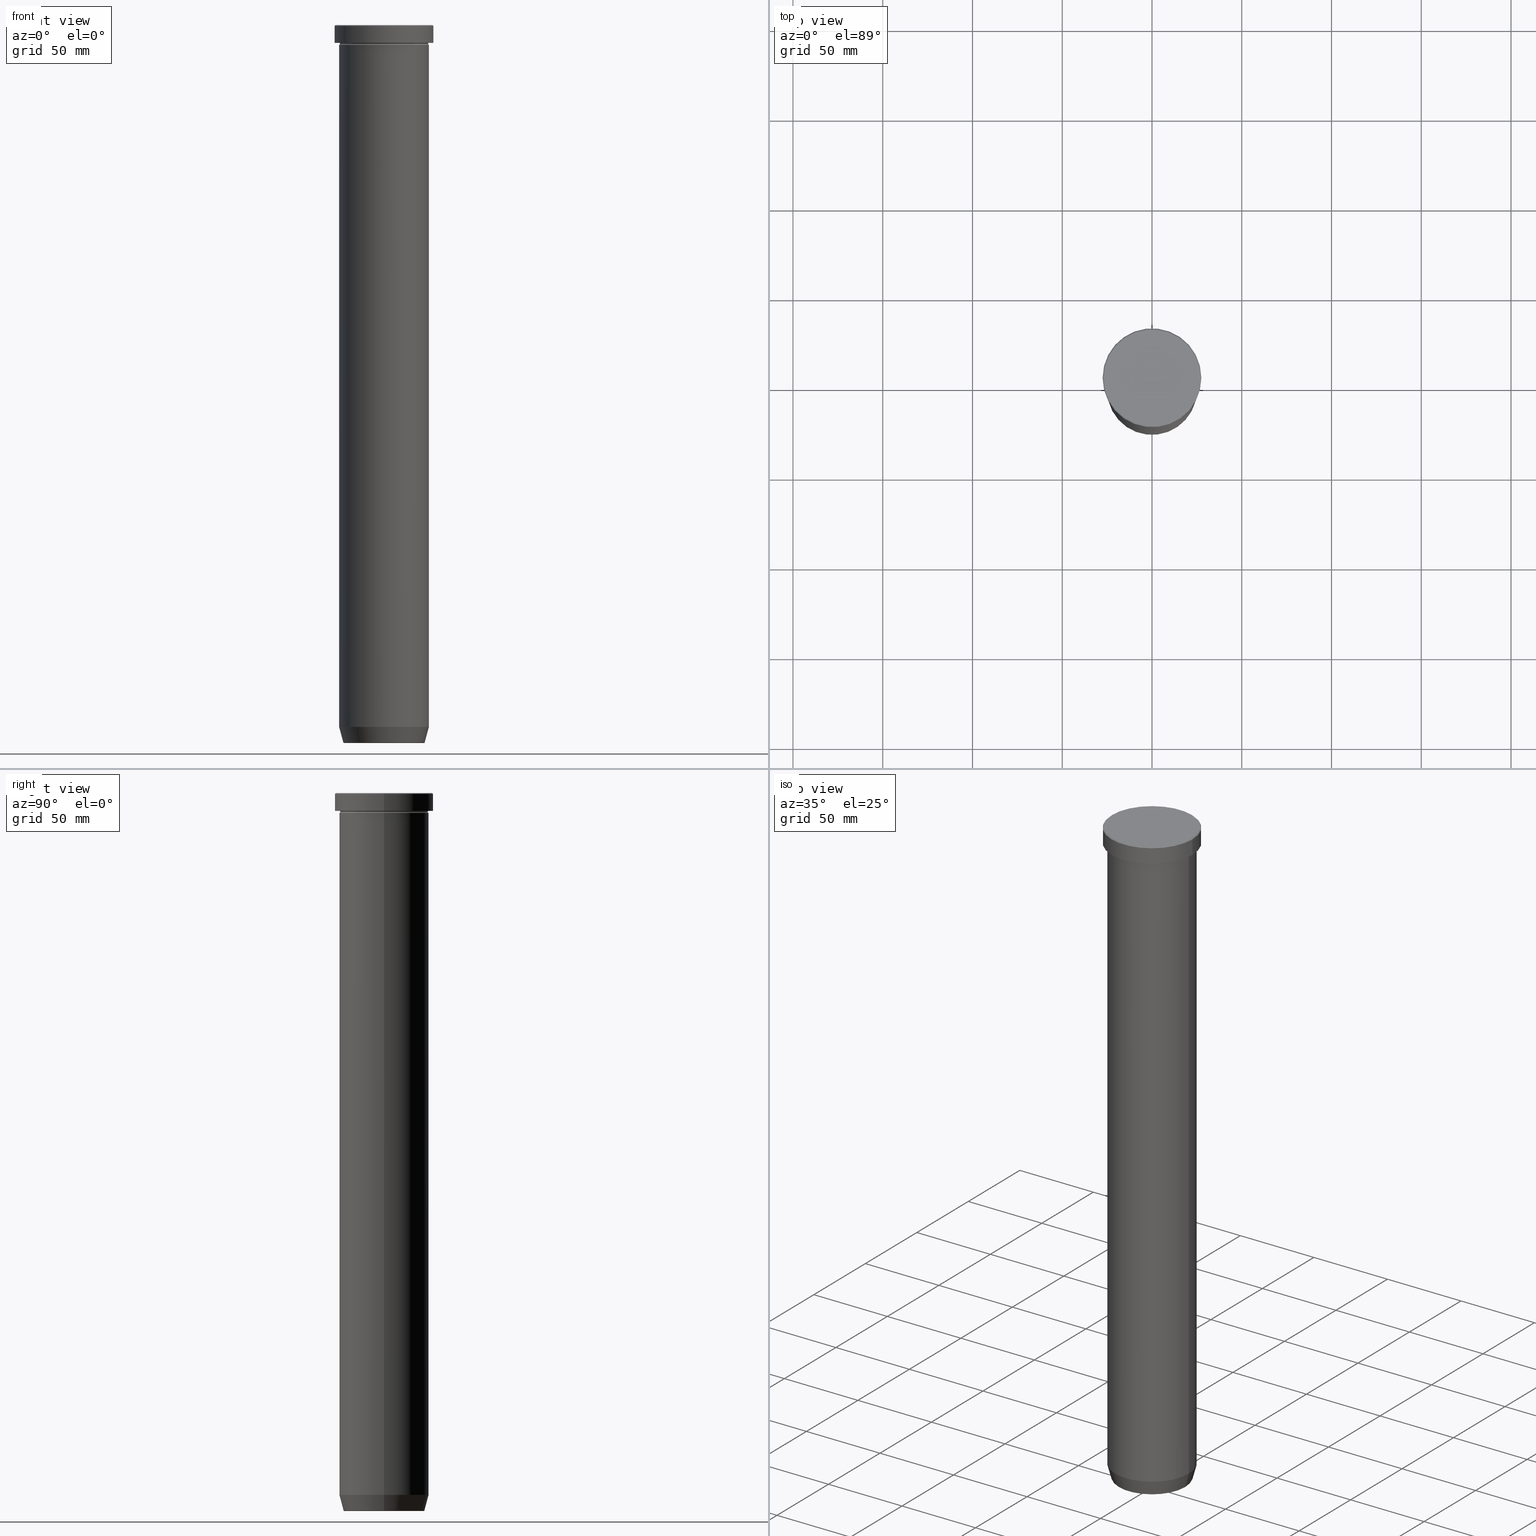
[diagram: canonical four-view strip — front | top / right | iso, engineering-drawing reading convention]
A machine part, canonical four-view strip (front | top / right | iso — engineering-drawing reading convention). The complete STEP part file that produces these views, byte-faithful:
ISO-10303-21;
HEADER;
FILE_DESCRIPTION (( 'STEP AP203' ),
    '1' );
FILE_NAME ('308e.STEP',
    '2024-01-02T17:31:47',
    ( '' ),
    ( '' ),
    'SwSTEP 2.0',
    'SolidWorks 2019',
    '' );
FILE_SCHEMA (( 'CONFIG_CONTROL_DESIGN' ));
ENDSEC;

DATA;
#1 = CARTESIAN_POINT ( 'NONE',  ( 0.000000000000000000, 0.000000000000000000, -400.0000000000000000 ) ) ;
#2 = DIRECTION ( 'NONE',  ( -1.000000000000000000, 0.000000000000000000, -0.000000000000000000 ) ) ;
#3 = AXIS2_PLACEMENT_3D ( 'NONE', #177, #413, #400 ) ;
#4 = LOCAL_TIME ( 18, 31, 47.00000000000000000, #157 ) ;
#5 = PLANE ( 'NONE',  #156 ) ;
#6 = ORIENTED_EDGE ( 'NONE', *, *, #370, .F. ) ;
#7 = DIRECTION ( 'NONE',  ( 0.000000000000000000, -0.000000000000000000, 1.000000000000000000 ) ) ;
#8 = CARTESIAN_POINT ( 'NONE',  ( 0.000000000000000000, 0.000000000000000000, -10.49999999999999822 ) ) ;
#9 = ORIENTED_EDGE ( 'NONE', *, *, #153, .F. ) ;
#10 = CARTESIAN_POINT ( 'NONE',  ( 0.000000000000000000, 0.000000000000000000, -80.00000000000000000 ) ) ;
#11 = DIRECTION ( 'NONE',  ( 0.000000000000000000, 0.000000000000000000, 1.000000000000000000 ) ) ;
#12 = EDGE_CURVE ( 'NONE', #591, #431, #296, .T. ) ;
#13 = DIRECTION ( 'NONE',  ( -0.000000000000000000, -0.000000000000000000, 1.000000000000000000 ) ) ;
#14 = TOROIDAL_SURFACE ( 'NONE', #423, 25.00000000000000000, 0.5000000000000000000 ) ;
#15 = CALENDAR_DATE ( 2024, 2, 1 ) ;
#16 = LOCAL_TIME ( 18, 31, 47.00000000000000000, #189 ) ;
#17 = DIRECTION ( 'NONE',  ( 0.000000000000000000, -0.000000000000000000, 1.000000000000000000 ) ) ;
#18 = PERSON_AND_ORGANIZATION ( #66, #467 ) ;
#19 = EDGE_CURVE ( 'NONE', #361, #101, #63, .T. ) ;
#20 = APPROVAL ( #579, 'NEUR�EN�' ) ;
#21 = DIRECTION ( 'NONE',  ( 1.000000000000000000, 0.000000000000000000, 0.000000000000000000 ) ) ;
#22 = APPROVAL_ROLE ( '' ) ;
#23 = CARTESIAN_POINT ( 'NONE',  ( -25.00000000000000000, 0.000000000000000000, -10.49999999999999822 ) ) ;
#24 = MECHANICAL_CONTEXT ( 'NONE', #449, 'mechanical' ) ;
#25 = FACE_OUTER_BOUND ( 'NONE', #59, .T. ) ;
#26 = AXIS2_PLACEMENT_3D ( 'NONE', #380, #48, #242 ) ;
#27 = DIRECTION ( 'NONE',  ( -1.000000000000000000, 1.224646799147349509E-16, 0.000000000000000000 ) ) ;
#28 = CARTESIAN_POINT ( 'NONE',  ( 0.000000000000000000, 0.000000000000000000, -10.49999999999999822 ) ) ;
#29 = CARTESIAN_POINT ( 'NONE',  ( 22.68775668727494477, 0.000000000000000000, -399.6294095225512706 ) ) ;
#30 = ORIENTED_EDGE ( 'NONE', *, *, #149, .F. ) ;
#31 = DIRECTION ( 'NONE',  ( 0.000000000000000000, 0.000000000000000000, -1.000000000000000000 ) ) ;
#32 = ADVANCED_FACE ( 'NONE', ( #43 ), #434, .T. ) ;
#33 = VERTEX_POINT ( 'NONE', #264 ) ;
#34 = AXIS2_PLACEMENT_3D ( 'NONE', #61, #17, #344 ) ;
#35 = VERTEX_POINT ( 'NONE', #277 ) ;
#36 = VERTEX_POINT ( 'NONE', #367 ) ;
#37 = ORIENTED_EDGE ( 'NONE', *, *, #567, .F. ) ;
#38 = ORIENTED_EDGE ( 'NONE', *, *, #352, .T. ) ;
#39 = CARTESIAN_POINT ( 'NONE',  ( -22.20479377413040822, 2.719302962121588246E-15, -399.5000000000000000 ) ) ;
#40 = EDGE_LOOP ( 'NONE', ( #411, #273 ) ) ;
#41 = AXIS2_PLACEMENT_3D ( 'NONE', #23, #253, #584 ) ;
#42 = CIRCLE ( 'NONE', #510, 22.20479377413040822 ) ;
#43 = FACE_OUTER_BOUND ( 'NONE', #368, .T. ) ;
#44 =( GEOMETRIC_REPRESENTATION_CONTEXT ( 3 ) GLOBAL_UNCERTAINTY_ASSIGNED_CONTEXT ( ( #382 ) ) GLOBAL_UNIT_ASSIGNED_CONTEXT ( ( #147, #430, #292 ) ) REPRESENTATION_CONTEXT ( 'NONE', 'WORKASPACE' ) );
#45 = ADVANCED_FACE ( 'NONE', ( #458 ), #599, .T. ) ;
#46 = ORIENTED_EDGE ( 'NONE', *, *, #57, .T. ) ;
#47 = ADVANCED_FACE ( 'NONE', ( #460 ), #507, .T. ) ;
#48 = DIRECTION ( 'NONE',  ( 0.000000000000000000, 0.000000000000000000, -1.000000000000000000 ) ) ;
#49 = CARTESIAN_POINT ( 'NONE',  ( 0.000000000000000000, 3.469446951953614189E-15, -80.00000000000000000 ) ) ;
#50 = LINE ( 'NONE', #385, #357 ) ;
#51 = TOROIDAL_SURFACE ( 'NONE', #230, 22.20479377413040822, 0.5000000000000000000 ) ;
#52 = VECTOR ( 'NONE', #395, 1000.000000000000000 ) ;
#53 = LOCAL_TIME ( 18, 31, 47.00000000000000000, #103 ) ;
#54 = DIRECTION ( 'NONE',  ( 1.000000000000000000, 0.000000000000000000, 0.000000000000000000 ) ) ;
#55 = ORIENTED_EDGE ( 'NONE', *, *, #554, .F. ) ;
#56 = DIRECTION ( 'NONE',  ( 1.000000000000000000, 0.000000000000000000, 0.000000000000000000 ) ) ;
#57 = EDGE_CURVE ( 'NONE', #325, #35, #181, .T. ) ;
#58 = CARTESIAN_POINT ( 'NONE',  ( 0.000000000000000000, 0.000000000000000000, 0.000000000000000000 ) ) ;
#59 = EDGE_LOOP ( 'NONE', ( #476, #263, #182, #561 ) ) ;
#60 = CARTESIAN_POINT ( 'NONE',  ( -22.58845726811988897, 2.766288189107978730E-15, -400.0000000000000000 ) ) ;
#61 = CARTESIAN_POINT ( 'NONE',  ( 0.000000000000000000, 0.000000000000000000, 0.000000000000000000 ) ) ;
#62 = DIRECTION ( 'NONE',  ( -0.000000000000000000, -0.000000000000000000, 1.000000000000000000 ) ) ;
#63 = CIRCLE ( 'NONE', #551, 22.68775668727494477 ) ;
#64 = AXIS2_PLACEMENT_3D ( 'NONE', #496, #448, #210 ) ;
#65 = PERSON_AND_ORGANIZATION_ROLE ( 'creator' ) ;
#66 = PERSON ( 'NEUR�EN�', 'NEUR�EN�', 'NEUR�EN�', ('NEUR�EN�'), ('NEUR�EN�'), ('NEUR�EN�') ) ;
#67 = DIRECTION ( 'NONE',  ( -0.000000000000000000, -0.000000000000000000, 1.000000000000000000 ) ) ;
#68 = APPROVAL ( #437, 'NEUR�EN�' ) ;
#69 = DIRECTION ( 'NONE',  ( -0.000000000000000000, -0.000000000000000000, 1.000000000000000000 ) ) ;
#70 = CALENDAR_DATE ( 2024, 2, 1 ) ;
#71 = CARTESIAN_POINT ( 'NONE',  ( 0.000000000000000000, 0.000000000000000000, -399.5000000000000000 ) ) ;
#72 = DIRECTION ( 'NONE',  ( -0.000000000000000000, -0.000000000000000000, 1.000000000000000000 ) ) ;
#73 = DIRECTION ( 'NONE',  ( 1.000000000000000000, 0.000000000000000000, 0.000000000000000000 ) ) ;
#74 = EDGE_CURVE ( 'NONE', #166, #550, #384, .T. ) ;
#75 = CARTESIAN_POINT ( 'NONE',  ( -25.00000000000000711, 3.061616997868383831E-15, -80.00000000000000000 ) ) ;
#76 = DIRECTION ( 'NONE',  ( 1.000000000000000000, 0.000000000000000000, 0.000000000000000000 ) ) ;
#77 = ADVANCED_FACE ( 'NONE', ( #209 ), #355, .T. ) ;
#78 = CARTESIAN_POINT ( 'NONE',  ( 0.000000000000000000, 0.000000000000000000, -10.49999999999999822 ) ) ;
#79 = VERTEX_POINT ( 'NONE', #114 ) ;
#80 = VERTEX_POINT ( 'NONE', #535 ) ;
#81 = AXIS2_PLACEMENT_3D ( 'NONE', #1, #329, #504 ) ;
#82 = CIRCLE ( 'NONE', #318, 25.00000000000000355 ) ;
#83 = APPROVAL_PERSON_ORGANIZATION ( #524, #20, #348 ) ;
#84 = DIRECTION ( 'NONE',  ( 1.000000000000000000, 0.000000000000000000, 0.000000000000000000 ) ) ;
#85 = EDGE_LOOP ( 'NONE', ( #519, #219, #589, #558 ) ) ;
#86 = ORIENTED_EDGE ( 'NONE', *, *, #340, .F. ) ;
#87 = DIRECTION ( 'NONE',  ( -1.000000000000000000, 0.000000000000000000, 0.000000000000000000 ) ) ;
#88 = VERTEX_POINT ( 'NONE', #570 ) ;
#89 = ORIENTED_EDGE ( 'NONE', *, *, #197, .F. ) ;
#90 = ADVANCED_FACE ( 'NONE', ( #490 ), #51, .T. ) ;
#91 = CIRCLE ( 'NONE', #195, 25.00000000000000000 ) ;
#92 = ORIENTED_EDGE ( 'NONE', *, *, #192, .F. ) ;
#93 = EDGE_CURVE ( 'NONE', #80, #469, #306, .T. ) ;
#94 = DIRECTION ( 'NONE',  ( -0.000000000000000000, -0.000000000000000000, 1.000000000000000000 ) ) ;
#95 = DIRECTION ( 'NONE',  ( 1.000000000000000000, 0.000000000000000000, 0.000000000000000000 ) ) ;
#96 = CARTESIAN_POINT ( 'NONE',  ( 0.000000000000000000, 0.000000000000000000, 0.000000000000000000 ) ) ;
#97 = DIRECTION ( 'NONE',  ( 1.000000000000000000, 0.000000000000000000, 0.000000000000000000 ) ) ;
#98 = AXIS2_PLACEMENT_3D ( 'NONE', #324, #131, #321 ) ;
#99 = CIRCLE ( 'NONE', #262, 0.5000000000000004441 ) ;
#100 = DIRECTION ( 'NONE',  ( -1.000000000000000000, 0.000000000000000000, 0.000000000000000000 ) ) ;
#101 = VERTEX_POINT ( 'NONE', #29 ) ;
#102 = CARTESIAN_POINT ( 'NONE',  ( 26.99999999999996447, 3.306546357697849395E-15, 0.000000000000000000 ) ) ;
#103 = COORDINATED_UNIVERSAL_TIME_OFFSET ( 1, 0, .AHEAD. ) ;
#104 = CARTESIAN_POINT ( 'NONE',  ( -25.00000000000000000, 3.061616997868383043E-15, -11.00000000000000000 ) ) ;
#105 = FACE_OUTER_BOUND ( 'NONE', #555, .T. ) ;
#106 = PERSON_AND_ORGANIZATION ( #66, #467 ) ;
#107 = EDGE_CURVE ( 'NONE', #360, #226, #586, .T. ) ;
#108 = PRODUCT_RELATED_PRODUCT_CATEGORY ( 'detail', '', ( #457 ) ) ;
#109 = DIRECTION ( 'NONE',  ( 1.000000000000000000, 0.000000000000000000, 0.000000000000000000 ) ) ;
#110 = CARTESIAN_POINT ( 'NONE',  ( 0.000000000000000000, 0.000000000000000000, -391.0000000000000000 ) ) ;
#111 = AXIS2_PLACEMENT_3D ( 'NONE', #513, #289, #2 ) ;
#112 = COORDINATED_UNIVERSAL_TIME_OFFSET ( 1, 0, .AHEAD. ) ;
#113 = LOCAL_TIME ( 18, 31, 47.00000000000000000, #112 ) ;
#114 = CARTESIAN_POINT ( 'NONE',  ( 25.00000000000000000, 3.061616997868383043E-15, -9.999999999999998224 ) ) ;
#115 = CARTESIAN_POINT ( 'NONE',  ( 25.00000000000000000, 0.000000000000000000, -11.00000000000000000 ) ) ;
#116 = CYLINDRICAL_SURFACE ( 'NONE', #172, 25.00000000000000000 ) ;
#117 = CARTESIAN_POINT ( 'NONE',  ( 25.00000000000000000, 0.000000000000000000, 0.000000000000000000 ) ) ;
#118 = EDGE_CURVE ( 'NONE', #469, #412, #247, .T. ) ;
#119 = DIRECTION ( 'NONE',  ( 1.000000000000000000, 0.000000000000000000, 0.000000000000000000 ) ) ;
#120 = AXIS2_PLACEMENT_3D ( 'NONE', #353, #164, #530 ) ;
#121 = CIRCLE ( 'NONE', #327, 0.5000000000000004441 ) ;
#122 = CARTESIAN_POINT ( 'NONE',  ( 0.000000000000000000, 0.000000000000000000, 0.000000000000000000 ) ) ;
#123 = AXIS2_PLACEMENT_3D ( 'NONE', #58, #514, #109 ) ;
#124 = SECURITY_CLASSIFICATION ( '', '', #239 ) ;
#125 = ORIENTED_EDGE ( 'NONE', *, *, #498, .T. ) ;
#126 = ORIENTED_EDGE ( 'NONE', *, *, #127, .F. ) ;
#127 = EDGE_CURVE ( 'NONE', #79, #216, #573, .T. ) ;
#128 = ORIENTED_EDGE ( 'NONE', *, *, #173, .T. ) ;
#129 = AXIS2_PLACEMENT_3D ( 'NONE', #347, #492, #21 ) ;
#130 = AXIS2_PLACEMENT_3D ( 'NONE', #10, #144, #228 ) ;
#131 = DIRECTION ( 'NONE',  ( -0.000000000000000000, -0.000000000000000000, 1.000000000000000000 ) ) ;
#132 = CYLINDRICAL_SURFACE ( 'NONE', #232, 27.50000000000000000 ) ;
#133 = ORIENTED_EDGE ( 'NONE', *, *, #453, .T. ) ;
#134 = ADVANCED_FACE ( 'NONE', ( #298 ), #116, .T. ) ;
#135 = DIRECTION ( 'NONE',  ( -0.000000000000000000, -0.000000000000000000, 1.000000000000000000 ) ) ;
#136 = ORIENTED_EDGE ( 'NONE', *, *, #127, .T. ) ;
#137 = CC_DESIGN_PERSON_AND_ORGANIZATION_ASSIGNMENT ( #18, #441, ( #457 ) ) ;
#138 = EDGE_LOOP ( 'NONE', ( #55, #217, #313, #212 ) ) ;
#139 = CARTESIAN_POINT ( 'NONE',  ( 0.000000000000000000, 0.000000000000000000, -400.0000000000000000 ) ) ;
#140 = DIRECTION ( 'NONE',  ( 0.000000000000000000, 0.000000000000000000, -1.000000000000000000 ) ) ;
#141 = ORIENTED_EDGE ( 'NONE', *, *, #587, .F. ) ;
#142 = PLANE ( 'NONE',  #26 ) ;
#143 = ORIENTED_EDGE ( 'NONE', *, *, #161, .T. ) ;
#144 = DIRECTION ( 'NONE',  ( -0.000000000000000000, -0.000000000000000000, 1.000000000000000000 ) ) ;
#145 = VECTOR ( 'NONE', #287, 1000.000000000000000 ) ;
#146 = DATE_TIME_ROLE ( 'classification_date' ) ;
#147 =( LENGTH_UNIT ( ) NAMED_UNIT ( * ) SI_UNIT ( .MILLI., .METRE. ) );
#148 = CARTESIAN_POINT ( 'NONE',  ( -22.68775668727494477, 2.920032929279452187E-15, -399.6294095225512706 ) ) ;
#149 = EDGE_CURVE ( 'NONE', #420, #35, #440, .T. ) ;
#150 = CALENDAR_DATE ( 2024, 2, 1 ) ;
#151 = DIRECTION ( 'NONE',  ( -1.000000000000000000, 0.000000000000000000, 0.000000000000000000 ) ) ;
#152 = CARTESIAN_POINT ( 'NONE',  ( 0.000000000000000000, 0.000000000000000000, -400.0000000000000000 ) ) ;
#153 = EDGE_CURVE ( 'NONE', #33, #420, #317, .T. ) ;
#154 = AXIS2_PLACEMENT_3D ( 'NONE', #152, #69, #495 ) ;
#155 = DIRECTION ( 'NONE',  ( -0.000000000000000000, -0.000000000000000000, 1.000000000000000000 ) ) ;
#156 = AXIS2_PLACEMENT_3D ( 'NONE', #49, #140, #569 ) ;
#157 = COORDINATED_UNIVERSAL_TIME_OFFSET ( 1, 0, .AHEAD. ) ;
#158 = CARTESIAN_POINT ( 'NONE',  ( -25.00000000000000000, 0.000000000000000000, -9.999999999999998224 ) ) ;
#159 = DIRECTION ( 'NONE',  ( 0.000000000000000000, 0.000000000000000000, -1.000000000000000000 ) ) ;
#160 = DIRECTION ( 'NONE',  ( 1.000000000000000000, 0.000000000000000000, 0.000000000000000000 ) ) ;
#161 = EDGE_CURVE ( 'NONE', #469, #80, #252, .T. ) ;
#162 = CARTESIAN_POINT ( 'NONE',  ( 27.50000000000000000, 0.000000000000000000, 0.000000000000000000 ) ) ;
#163 = FACE_OUTER_BOUND ( 'NONE', #337, .T. ) ;
#164 = DIRECTION ( 'NONE',  ( -0.000000000000000000, -0.000000000000000000, 1.000000000000000000 ) ) ;
#165 = AXIS2_PLACEMENT_3D ( 'NONE', #293, #7, #483 ) ;
#166 = VERTEX_POINT ( 'NONE', #533 ) ;
#167 = ORIENTED_EDGE ( 'NONE', *, *, #300, .T. ) ;
#168 = ORIENTED_EDGE ( 'NONE', *, *, #74, .F. ) ;
#169 = ORIENTED_EDGE ( 'NONE', *, *, #320, .F. ) ;
#170 = CARTESIAN_POINT ( 'NONE',  ( 22.20479377413040822, 0.000000000000000000, -399.5000000000000000 ) ) ;
#171 = EDGE_LOOP ( 'NONE', ( #501, #544, #549, #141 ) ) ;
#172 = AXIS2_PLACEMENT_3D ( 'NONE', #250, #403, #442 ) ;
#173 = EDGE_CURVE ( 'NONE', #166, #216, #592, .T. ) ;
#174 = CIRCLE ( 'NONE', #553, 25.00000000000000000 ) ;
#175 = LOCAL_TIME ( 18, 31, 47.00000000000000000, #199 ) ;
#176 = ORIENTED_EDGE ( 'NONE', *, *, #173, .F. ) ;
#177 = CARTESIAN_POINT ( 'NONE',  ( 0.000000000000000000, 0.000000000000000000, -9.999999999999998224 ) ) ;
#178 = APPROVAL ( #206, 'NEUR�EN�' ) ;
#179 = ORIENTED_EDGE ( 'NONE', *, *, #192, .T. ) ;
#180 = CARTESIAN_POINT ( 'NONE',  ( 0.000000000000000000, 0.000000000000000000, -399.6294095225512706 ) ) ;
#181 = CIRCLE ( 'NONE', #261, 27.50000000000000000 ) ;
#182 = ORIENTED_EDGE ( 'NONE', *, *, #540, .F. ) ;
#183 = AXIS2_PLACEMENT_3D ( 'NONE', #438, #435, #151 ) ;
#184 = CC_DESIGN_SECURITY_CLASSIFICATION ( #124, ( #310 ) ) ;
#185 = CC_DESIGN_PERSON_AND_ORGANIZATION_ASSIGNMENT ( #571, #564, ( #124 ) ) ;
#186 = CARTESIAN_POINT ( 'NONE',  ( -25.00000000000000000, 3.061616997868383043E-15, 0.000000000000000000 ) ) ;
#187 = FACE_OUTER_BOUND ( 'NONE', #506, .T. ) ;
#188 = CARTESIAN_POINT ( 'NONE',  ( 0.000000000000000000, 0.000000000000000000, 0.000000000000000000 ) ) ;
#189 = COORDINATED_UNIVERSAL_TIME_OFFSET ( 1, 0, .AHEAD. ) ;
#190 = DIRECTION ( 'NONE',  ( 1.000000000000000000, 0.000000000000000000, 0.000000000000000000 ) ) ;
#191 = LINE ( 'NONE', #102, #494 ) ;
#192 = EDGE_CURVE ( 'NONE', #420, #33, #336, .T. ) ;
#193 = AXIS2_PLACEMENT_3D ( 'NONE', #211, #578, #73 ) ;
#194 = AXIS2_PLACEMENT_3D ( 'NONE', #39, #493, #221 ) ;
#195 = AXIS2_PLACEMENT_3D ( 'NONE', #311, #354, #160 ) ;
#196 = FACE_OUTER_BOUND ( 'NONE', #138, .T. ) ;
#197 = EDGE_CURVE ( 'NONE', #88, #314, #121, .T. ) ;
#198 = MANIFOLD_SOLID_BREP ( 'Zkosen�1', #414 ) ;
#199 = COORDINATED_UNIVERSAL_TIME_OFFSET ( 1, 0, .AHEAD. ) ;
#200 = DIRECTION ( 'NONE',  ( -0.000000000000000000, -0.000000000000000000, 1.000000000000000000 ) ) ;
#201 = PERSON_AND_ORGANIZATION_ROLE ( 'creator' ) ;
#202 = ORIENTED_EDGE ( 'NONE', *, *, #268, .F. ) ;
#203 = DIRECTION ( 'NONE',  ( -0.000000000000000000, -0.000000000000000000, 1.000000000000000000 ) ) ;
#204 = CARTESIAN_POINT ( 'NONE',  ( 25.00000000000000000, 0.000000000000000000, -10.49999999999999822 ) ) ;
#205 = AXIS2_PLACEMENT_3D ( 'NONE', #234, #518, #100 ) ;
#206 = APPROVAL_STATUS ( 'not_yet_approved' ) ;
#207 = ADVANCED_FACE ( 'NONE', ( #350 ), #575, .T. ) ;
#208 = CARTESIAN_POINT ( 'NONE',  ( -27.50000000000000000, 3.367778697655221307E-15, 0.000000000000000000 ) ) ;
#209 = FACE_OUTER_BOUND ( 'NONE', #85, .T. ) ;
#210 = DIRECTION ( 'NONE',  ( 1.000000000000000000, 0.000000000000000000, 0.000000000000000000 ) ) ;
#211 = CARTESIAN_POINT ( 'NONE',  ( 0.000000000000000000, 0.000000000000000000, -80.00000000000000000 ) ) ;
#212 = ORIENTED_EDGE ( 'NONE', *, *, #512, .F. ) ;
#213 = FACE_OUTER_BOUND ( 'NONE', #462, .T. ) ;
#214 = ADVANCED_FACE ( 'NONE', ( #213 ), #132, .T. ) ;
#215 = VECTOR ( 'NONE', #255, 1000.000000000000000 ) ;
#216 = VERTEX_POINT ( 'NONE', #158 ) ;
#217 = ORIENTED_EDGE ( 'NONE', *, *, #417, .T. ) ;
#218 = EDGE_LOOP ( 'NONE', ( #168, #323, #283, #409 ) ) ;
#219 = ORIENTED_EDGE ( 'NONE', *, *, #19, .T. ) ;
#220 = EDGE_LOOP ( 'NONE', ( #541, #136 ) ) ;
#221 = DIRECTION ( 'NONE',  ( -1.000000000000000000, 1.224646799147349509E-16, 0.000000000000000000 ) ) ;
#222 = EDGE_LOOP ( 'NONE', ( #374, #269, #585, #6 ) ) ;
#223 = EDGE_CURVE ( 'NONE', #226, #550, #322, .T. ) ;
#224 = AXIS2_PLACEMENT_3D ( 'NONE', #28, #536, #545 ) ;
#225 = ORIENTED_EDGE ( 'NONE', *, *, #260, .T. ) ;
#226 = VERTEX_POINT ( 'NONE', #75 ) ;
#227 = ORIENTED_EDGE ( 'NONE', *, *, #466, .T. ) ;
#228 = DIRECTION ( 'NONE',  ( 1.000000000000000000, 0.000000000000000000, 0.000000000000000000 ) ) ;
#229 = CARTESIAN_POINT ( 'NONE',  ( 22.20479377413040822, 0.000000000000000000, -400.0000000000000000 ) ) ;
#230 = AXIS2_PLACEMENT_3D ( 'NONE', #71, #256, #526 ) ;
#231 = DIRECTION ( 'NONE',  ( -1.000000000000000000, 0.000000000000000000, 0.000000000000000000 ) ) ;
#232 = AXIS2_PLACEMENT_3D ( 'NONE', #251, #203, #257 ) ;
#233 = APPLICATION_CONTEXT ( 'configuration controlled 3d designs of mechanical parts and assemblies' ) ;
#234 = CARTESIAN_POINT ( 'NONE',  ( 0.000000000000000000, 0.000000000000000000, -399.6294095225512706 ) ) ;
#235 = ORIENTED_EDGE ( 'NONE', *, *, #118, .F. ) ;
#236 = DIRECTION ( 'NONE',  ( 0.000000000000000000, 0.000000000000000000, -1.000000000000000000 ) ) ;
#237 = ORIENTED_EDGE ( 'NONE', *, *, #567, .T. ) ;
#238 = PLANE ( 'NONE',  #165 ) ;
#239 = SECURITY_CLASSIFICATION_LEVEL ( 'unclassified' ) ;
#240 = CC_DESIGN_DATE_AND_TIME_ASSIGNMENT ( #568, #388, ( #523 ) ) ;
#241 = FACE_OUTER_BOUND ( 'NONE', #218, .T. ) ;
#242 = DIRECTION ( 'NONE',  ( -1.000000000000000000, 0.000000000000000000, -0.000000000000000000 ) ) ;
#243 = AXIS2_PLACEMENT_3D ( 'NONE', #110, #572, #304 ) ;
#244 = VECTOR ( 'NONE', #67, 1000.000000000000000 ) ;
#245 = PERSON_AND_ORGANIZATION ( #66, #467 ) ;
#246 = DIRECTION ( 'NONE',  ( 1.000000000000000000, 0.000000000000000000, 0.000000000000000000 ) ) ;
#247 = LINE ( 'NONE', #393, #282 ) ;
#248 = APPROVAL_DATE_TIME ( #299, #20 ) ;
#249 = ADVANCED_FACE ( 'NONE', ( #25 ), #528, .T. ) ;
#250 = CARTESIAN_POINT ( 'NONE',  ( 0.000000000000000000, 0.000000000000000000, 0.000000000000000000 ) ) ;
#251 = CARTESIAN_POINT ( 'NONE',  ( 0.000000000000000000, 0.000000000000000000, 0.000000000000000000 ) ) ;
#252 = CIRCLE ( 'NONE', #120, 25.00000000000000000 ) ;
#253 = DIRECTION ( 'NONE',  ( -0.000000000000000000, -1.000000000000000000, -0.000000000000000000 ) ) ;
#254 = AXIS2_PLACEMENT_3D ( 'NONE', #122, #72, #532 ) ;
#255 = DIRECTION ( 'NONE',  ( -0.000000000000000000, -0.000000000000000000, 1.000000000000000000 ) ) ;
#256 = DIRECTION ( 'NONE',  ( -0.000000000000000000, -0.000000000000000000, 1.000000000000000000 ) ) ;
#257 = DIRECTION ( 'NONE',  ( 1.000000000000000000, 0.000000000000000000, 0.000000000000000000 ) ) ;
#258 = EDGE_CURVE ( 'NONE', #33, #325, #580, .T. ) ;
#259 = ORIENTED_EDGE ( 'NONE', *, *, #352, .F. ) ;
#260 = EDGE_CURVE ( 'NONE', #591, #101, #99, .T. ) ;
#261 = AXIS2_PLACEMENT_3D ( 'NONE', #301, #446, #76 ) ;
#262 = AXIS2_PLACEMENT_3D ( 'NONE', #170, #451, #595 ) ;
#263 = ORIENTED_EDGE ( 'NONE', *, *, #312, .T. ) ;
#264 = CARTESIAN_POINT ( 'NONE',  ( -27.50000000000000000, 3.367778697655221307E-15, -9.999999999999998224 ) ) ;
#265 = ORIENTED_EDGE ( 'NONE', *, *, #300, .F. ) ;
#266 = ORIENTED_EDGE ( 'NONE', *, *, #118, .T. ) ;
#267 = CARTESIAN_POINT ( 'NONE',  ( -25.00000000000000000, 3.061616997868383043E-15, 0.000000000000000000 ) ) ;
#268 = EDGE_CURVE ( 'NONE', #360, #314, #349, .T. ) ;
#269 = ORIENTED_EDGE ( 'NONE', *, *, #340, .T. ) ;
#270 = DIRECTION ( 'NONE',  ( 1.000000000000000000, 0.000000000000000000, 0.000000000000000000 ) ) ;
#271 = CIRCLE ( 'NONE', #130, 25.00000000000000000 ) ;
#272 = APPROVAL_PERSON_ORGANIZATION ( #245, #68, #341 ) ;
#273 = ORIENTED_EDGE ( 'NONE', *, *, #554, .T. ) ;
#274 = ADVANCED_FACE ( 'NONE', ( #163 ), #401, .T. ) ;
#275 = ORIENTED_EDGE ( 'NONE', *, *, #498, .F. ) ;
#276 = CARTESIAN_POINT ( 'NONE',  ( 0.000000000000000000, 0.000000000000000000, -80.00000000000000000 ) ) ;
#277 = CARTESIAN_POINT ( 'NONE',  ( 27.50000000000000000, 0.000000000000000000, -0.5000000000000420775 ) ) ;
#278 = ADVANCED_BREP_SHAPE_REPRESENTATION ( '308e', ( #198, #598, #387 ), #44 ) ;
#279 = CARTESIAN_POINT ( 'NONE',  ( 0.000000000000000000, 0.000000000000000000, -10.49999999999999822 ) ) ;
#280 = SHAPE_DEFINITION_REPRESENTATION ( #315, #278 ) ;
#281 = DIRECTION ( 'NONE',  ( 0.000000000000000000, 0.000000000000000000, -1.000000000000000000 ) ) ;
#282 = VECTOR ( 'NONE', #345, 1000.000000000000000 ) ;
#283 = ORIENTED_EDGE ( 'NONE', *, *, #197, .T. ) ;
#284 = CARTESIAN_POINT ( 'NONE',  ( -22.20479377413040822, 2.748875911406054788E-15, -400.0000000000000000 ) ) ;
#285 = AXIS2_PLACEMENT_3D ( 'NONE', #491, #505, #444 ) ;
#286 = EDGE_CURVE ( 'NONE', #314, #550, #465, .T. ) ;
#287 = DIRECTION ( 'NONE',  ( -0.7071067811865426878, 0.000000000000000000, -0.7071067811865524577 ) ) ;
#288 = EDGE_LOOP ( 'NONE', ( #459, #546, #316, #202 ) ) ;
#289 = DIRECTION ( 'NONE',  ( 0.000000000000000000, 0.000000000000000000, -1.000000000000000000 ) ) ;
#290 = EDGE_CURVE ( 'NONE', #588, #412, #91, .T. ) ;
#291 = DATE_AND_TIME ( #70, #53 ) ;
#292 =( NAMED_UNIT ( * ) SI_UNIT ( $, .STERADIAN. ) SOLID_ANGLE_UNIT ( ) );
#293 = CARTESIAN_POINT ( 'NONE',  ( 0.000000000000000000, 4.286263797015736496E-14, -400.0000000000000000 ) ) ;
#294 = CARTESIAN_POINT ( 'NONE',  ( 0.000000000000000000, 0.000000000000000000, 0.000000000000000000 ) ) ;
#295 = DIRECTION ( 'NONE',  ( -1.224646799147353207E-16, 1.000000000000000000, 0.000000000000000000 ) ) ;
#296 = CIRCLE ( 'NONE', #81, 22.20479377413040822 ) ;
#297 = TOROIDAL_SURFACE ( 'NONE', #455, 25.00000000000000000, 0.5000000000000000000 ) ;
#298 = FACE_OUTER_BOUND ( 'NONE', #424, .T. ) ;
#299 = DATE_AND_TIME ( #150, #16 ) ;
#300 = EDGE_CURVE ( 'NONE', #166, #88, #464, .T. ) ;
#301 = CARTESIAN_POINT ( 'NONE',  ( 0.000000000000000000, 0.000000000000000000, -0.5000000000000420775 ) ) ;
#302 = DIRECTION ( 'NONE',  ( 1.000000000000000000, 0.000000000000000000, 0.000000000000000000 ) ) ;
#303 = CARTESIAN_POINT ( 'NONE',  ( 0.000000000000000000, 0.000000000000000000, -11.00000000000000000 ) ) ;
#304 = DIRECTION ( 'NONE',  ( 1.000000000000000000, 0.000000000000000000, 0.000000000000000000 ) ) ;
#305 = DIRECTION ( 'NONE',  ( -0.000000000000000000, -0.000000000000000000, 1.000000000000000000 ) ) ;
#306 = CIRCLE ( 'NONE', #243, 25.00000000000000000 ) ;
#307 = DIRECTION ( 'NONE',  ( -1.000000000000000000, 0.000000000000000000, 0.000000000000000000 ) ) ;
#308 = ADVANCED_FACE ( 'NONE', ( #582 ), #436, .F. ) ;
#309 = CIRCLE ( 'NONE', #123, 26.99999999999996447 ) ;
#310 = PRODUCT_DEFINITION_FORMATION_WITH_SPECIFIED_SOURCE ( 'LIBOVOLN�', '', #457, .NOT_KNOWN. ) ;
#311 = CARTESIAN_POINT ( 'NONE',  ( 0.000000000000000000, 0.000000000000000000, -80.00000000000000000 ) ) ;
#312 = EDGE_CURVE ( 'NONE', #431, #361, #365, .T. ) ;
#313 = ORIENTED_EDGE ( 'NONE', *, *, #57, .F. ) ;
#314 = VERTEX_POINT ( 'NONE', #115 ) ;
#315 = PRODUCT_DEFINITION_SHAPE ( 'NONE', 'NONE',  #523 ) ;
#316 = ORIENTED_EDGE ( 'NONE', *, *, #286, .F. ) ;
#317 = CIRCLE ( 'NONE', #129, 27.50000000000000000 ) ;
#318 = AXIS2_PLACEMENT_3D ( 'NONE', #276, #13, #95 ) ;
#319 = ORIENTED_EDGE ( 'NONE', *, *, #107, .F. ) ;
#320 = EDGE_CURVE ( 'NONE', #216, #79, #445, .T. ) ;
#321 = DIRECTION ( 'NONE',  ( 1.000000000000000000, 0.000000000000000000, 0.000000000000000000 ) ) ;
#322 = LINE ( 'NONE', #267, #486 ) ;
#323 = ORIENTED_EDGE ( 'NONE', *, *, #326, .F. ) ;
#324 = CARTESIAN_POINT ( 'NONE',  ( 0.000000000000000000, 0.000000000000000000, 0.000000000000000000 ) ) ;
#325 = VERTEX_POINT ( 'NONE', #351 ) ;
#326 = EDGE_CURVE ( 'NONE', #88, #166, #346, .T. ) ;
#327 = AXIS2_PLACEMENT_3D ( 'NONE', #204, #398, #159 ) ;
#328 = CONICAL_SURFACE ( 'NONE', #406, 26.99999999999996447, 0.7853981633974415066 ) ;
#329 = DIRECTION ( 'NONE',  ( 0.000000000000000000, 0.000000000000000000, -1.000000000000000000 ) ) ;
#330 = DIRECTION ( 'NONE',  ( 0.000000000000000000, 0.000000000000000000, -1.000000000000000000 ) ) ;
#331 = CARTESIAN_POINT ( 'NONE',  ( -26.99999999999996447, 0.000000000000000000, 0.000000000000000000 ) ) ;
#332 = EDGE_LOOP ( 'NONE', ( #92, #9 ) ) ;
#333 = DIRECTION ( 'NONE',  ( 0.2588190451025211836, 0.000000000000000000, 0.9659258262890680902 ) ) ;
#334 = DESIGN_CONTEXT ( 'detailed design', #233, 'design' ) ;
#335 = FACE_OUTER_BOUND ( 'NONE', #40, .T. ) ;
#336 = CIRCLE ( 'NONE', #563, 27.50000000000000000 ) ;
#337 = EDGE_LOOP ( 'NONE', ( #179, #502, #46, #30 ) ) ;
#338 = CARTESIAN_POINT ( 'NONE',  ( 0.000000000000000000, 0.000000000000000000, -11.00000000000000000 ) ) ;
#339 = CIRCLE ( 'NONE', #415, 0.5000000000000004441 ) ;
#340 = EDGE_CURVE ( 'NONE', #226, #360, #82, .T. ) ;
#341 = APPROVAL_ROLE ( '' ) ;
#342 = FACE_OUTER_BOUND ( 'NONE', #539, .T. ) ;
#343 = PERSON_AND_ORGANIZATION ( #66, #467 ) ;
#344 = DIRECTION ( 'NONE',  ( 1.000000000000000000, 0.000000000000000000, 0.000000000000000000 ) ) ;
#345 = DIRECTION ( 'NONE',  ( -0.000000000000000000, -0.000000000000000000, 1.000000000000000000 ) ) ;
#346 = CIRCLE ( 'NONE', #537, 24.50000000000000000 ) ;
#347 = CARTESIAN_POINT ( 'NONE',  ( 0.000000000000000000, 0.000000000000000000, -9.999999999999998224 ) ) ;
#348 = APPROVAL_ROLE ( '' ) ;
#349 = LINE ( 'NONE', #117, #52 ) ;
#350 = FACE_OUTER_BOUND ( 'NONE', #468, .T. ) ;
#351 = CARTESIAN_POINT ( 'NONE',  ( -27.50000000000000000, 3.367778697655221307E-15, -0.5000000000000420775 ) ) ;
#352 = EDGE_CURVE ( 'NONE', #412, #588, #271, .T. ) ;
#353 = CARTESIAN_POINT ( 'NONE',  ( 0.000000000000000000, 0.000000000000000000, -391.0000000000000000 ) ) ;
#354 = DIRECTION ( 'NONE',  ( -0.000000000000000000, -0.000000000000000000, 1.000000000000000000 ) ) ;
#355 = CONICAL_SURFACE ( 'NONE', #154, 22.58845726811988897, 0.2617993877991499074 ) ;
#356 = CC_DESIGN_PERSON_AND_ORGANIZATION_ASSIGNMENT ( #381, #201, ( #523 ) ) ;
#357 = VECTOR ( 'NONE', #333, 1000.000000000000114 ) ;
#358 = CARTESIAN_POINT ( 'NONE',  ( -25.00000000000000000, 3.061616997868383043E-15, -10.49999999999999822 ) ) ;
#359 = ORIENTED_EDGE ( 'NONE', *, *, #258, .F. ) ;
#360 = VERTEX_POINT ( 'NONE', #377 ) ;
#361 = VERTEX_POINT ( 'NONE', #148 ) ;
#362 = CARTESIAN_POINT ( 'NONE',  ( 0.000000000000000000, 0.000000000000000000, -400.0000000000000000 ) ) ;
#363 = DIRECTION ( 'NONE',  ( 1.000000000000000000, 0.000000000000000000, 0.000000000000000000 ) ) ;
#364 = AXIS2_PLACEMENT_3D ( 'NONE', #581, #450, #307 ) ;
#365 = CIRCLE ( 'NONE', #194, 0.5000000000000004441 ) ;
#366 = ORIENTED_EDGE ( 'NONE', *, *, #12, .T. ) ;
#367 = CARTESIAN_POINT ( 'NONE',  ( 26.99999999999996447, 3.337162527676535548E-15, 0.000000000000000000 ) ) ;
#368 = EDGE_LOOP ( 'NONE', ( #404, #133, #407, #428 ) ) ;
#369 = ORIENTED_EDGE ( 'NONE', *, *, #74, .T. ) ;
#370 = EDGE_CURVE ( 'NONE', #550, #314, #174, .T. ) ;
#371 = AXIS2_PLACEMENT_3D ( 'NONE', #362, #94, #84 ) ;
#372 = CIRCLE ( 'NONE', #517, 26.99999999999996447 ) ;
#373 = AXIS2_PLACEMENT_3D ( 'NONE', #475, #281, #54 ) ;
#374 = ORIENTED_EDGE ( 'NONE', *, *, #223, .F. ) ;
#375 = CARTESIAN_POINT ( 'NONE',  ( 0.000000000000000000, 0.000000000000000000, -10.49999999999999822 ) ) ;
#376 = FACE_OUTER_BOUND ( 'NONE', #171, .T. ) ;
#377 = CARTESIAN_POINT ( 'NONE',  ( 25.00000000000000355, 0.000000000000000000, -80.00000000000000000 ) ) ;
#378 = DIRECTION ( 'NONE',  ( -1.000000000000000000, 0.000000000000000000, 0.000000000000000000 ) ) ;
#379 = ORIENTED_EDGE ( 'NONE', *, *, #312, .F. ) ;
#380 = CARTESIAN_POINT ( 'NONE',  ( 0.000000000000000000, 27.50000000000000000, -9.999999999999998224 ) ) ;
#381 = PERSON_AND_ORGANIZATION ( #66, #467 ) ;
#382 = UNCERTAINTY_MEASURE_WITH_UNIT (LENGTH_MEASURE( 1.000000000000000082E-05 ), #147, 'distance_accuracy_value', 'NONE');
#383 = LINE ( 'NONE', #471, #145 ) ;
#384 = CIRCLE ( 'NONE', #422, 0.5000000000000004441 ) ;
#385 = CARTESIAN_POINT ( 'NONE',  ( 22.58845726811988897, 0.000000000000000000, -400.0000000000000000 ) ) ;
#386 = AXIS2_PLACEMENT_3D ( 'NONE', #303, #305, #363 ) ;
#387 = AXIS2_PLACEMENT_3D ( 'NONE', #294, #11, #302 ) ;
#388 = DATE_TIME_ROLE ( 'creation_date' ) ;
#389 = FACE_OUTER_BOUND ( 'NONE', #594, .T. ) ;
#390 = EDGE_CURVE ( 'NONE', #509, #36, #372, .T. ) ;
#391 = CC_DESIGN_PERSON_AND_ORGANIZATION_ASSIGNMENT ( #106, #65, ( #310 ) ) ;
#392 = PERSON_AND_ORGANIZATION ( #66, #467 ) ;
#393 = CARTESIAN_POINT ( 'NONE',  ( 25.00000000000000000, 0.000000000000000000, 0.000000000000000000 ) ) ;
#394 = CALENDAR_DATE ( 2024, 2, 1 ) ;
#395 = DIRECTION ( 'NONE',  ( -0.000000000000000000, -0.000000000000000000, 1.000000000000000000 ) ) ;
#396 = VECTOR ( 'NONE', #155, 1000.000000000000000 ) ;
#397 = AXIS2_PLACEMENT_3D ( 'NONE', #375, #480, #231 ) ;
#398 = DIRECTION ( 'NONE',  ( 0.000000000000000000, -1.000000000000000000, 0.000000000000000000 ) ) ;
#399 = DATE_AND_TIME ( #15, #175 ) ;
#400 = DIRECTION ( 'NONE',  ( -1.000000000000000000, 0.000000000000000000, 0.000000000000000000 ) ) ;
#401 = CYLINDRICAL_SURFACE ( 'NONE', #64, 27.50000000000000000 ) ;
#402 = ADVANCED_FACE ( 'NONE', ( #187 ), #14, .F. ) ;
#403 = DIRECTION ( 'NONE',  ( -0.000000000000000000, -0.000000000000000000, 1.000000000000000000 ) ) ;
#404 = ORIENTED_EDGE ( 'NONE', *, *, #540, .T. ) ;
#405 = DIRECTION ( 'NONE',  ( -0.000000000000000000, -0.000000000000000000, 1.000000000000000000 ) ) ;
#406 = AXIS2_PLACEMENT_3D ( 'NONE', #96, #236, #378 ) ;
#407 = ORIENTED_EDGE ( 'NONE', *, *, #161, .F. ) ;
#408 = CC_DESIGN_PERSON_AND_ORGANIZATION_ASSIGNMENT ( #392, #489, ( #310 ) ) ;
#409 = ORIENTED_EDGE ( 'NONE', *, *, #286, .T. ) ;
#410 = ORIENTED_EDGE ( 'NONE', *, *, #290, .T. ) ;
#411 = ORIENTED_EDGE ( 'NONE', *, *, #390, .T. ) ;
#412 = VERTEX_POINT ( 'NONE', #421 ) ;
#413 = DIRECTION ( 'NONE',  ( -0.000000000000000000, -0.000000000000000000, 1.000000000000000000 ) ) ;
#414 = CLOSED_SHELL ( 'NONE', ( #503, #447, #402, #47, #274, #439, #547, #214, #426, #45, #484, #308, #583 ) ) ;
#415 = AXIS2_PLACEMENT_3D ( 'NONE', #482, #295, #525 ) ;
#416 = ORIENTED_EDGE ( 'NONE', *, *, #370, .T. ) ;
#417 = EDGE_CURVE ( 'NONE', #36, #35, #191, .T. ) ;
#418 = DIRECTION ( 'NONE',  ( -0.000000000000000000, -0.000000000000000000, 1.000000000000000000 ) ) ;
#419 = EDGE_CURVE ( 'NONE', #101, #469, #50, .T. ) ;
#420 = VERTEX_POINT ( 'NONE', #559 ) ;
#421 = CARTESIAN_POINT ( 'NONE',  ( 25.00000000000000000, 0.000000000000000000, -80.00000000000000000 ) ) ;
#422 = AXIS2_PLACEMENT_3D ( 'NONE', #358, #488, #27 ) ;
#423 = AXIS2_PLACEMENT_3D ( 'NONE', #279, #429, #470 ) ;
#424 = EDGE_LOOP ( 'NONE', ( #143, #237, #259, #235 ) ) ;
#425 = DIRECTION ( 'NONE',  ( -0.2588190451025211836, 3.169619151431770488E-17, 0.9659258262890680902 ) ) ;
#426 = ADVANCED_FACE ( 'NONE', ( #566, #477 ), #142, .T. ) ;
#427 = CARTESIAN_POINT ( 'NONE',  ( -25.00000000000000000, 3.061616997868383043E-15, -80.00000000000000000 ) ) ;
#428 = ORIENTED_EDGE ( 'NONE', *, *, #419, .F. ) ;
#429 = DIRECTION ( 'NONE',  ( -0.000000000000000000, -0.000000000000000000, 1.000000000000000000 ) ) ;
#430 =( NAMED_UNIT ( * ) PLANE_ANGLE_UNIT ( ) SI_UNIT ( $, .RADIAN. ) );
#431 = VERTEX_POINT ( 'NONE', #284 ) ;
#432 = DIRECTION ( 'NONE',  ( -0.000000000000000000, -0.000000000000000000, 1.000000000000000000 ) ) ;
#433 = DATE_AND_TIME ( #531, #4 ) ;
#434 = CONICAL_SURFACE ( 'NONE', #371, 22.58845726811988897, 0.2617993877991499074 ) ;
#435 = DIRECTION ( 'NONE',  ( 0.000000000000000000, 0.000000000000000000, -1.000000000000000000 ) ) ;
#436 = TOROIDAL_SURFACE ( 'NONE', #543, 25.00000000000000000, 0.5000000000000000000 ) ;
#437 = APPROVAL_STATUS ( 'not_yet_approved' ) ;
#438 = CARTESIAN_POINT ( 'NONE',  ( 0.000000000000000000, 0.000000000000000000, 0.000000000000000000 ) ) ;
#439 = ADVANCED_FACE ( 'NONE', ( #342 ), #472, .T. ) ;
#440 = LINE ( 'NONE', #162, #396 ) ;
#441 = PERSON_AND_ORGANIZATION_ROLE ( 'design_owner' ) ;
#442 = DIRECTION ( 'NONE',  ( 1.000000000000000000, 0.000000000000000000, 0.000000000000000000 ) ) ;
#443 = APPLICATION_PROTOCOL_DEFINITION ( 'international standard', 'config_control_design', 1994, #449 ) ;
#444 = DIRECTION ( 'NONE',  ( 1.000000000000000000, 0.000000000000000000, 0.000000000000000000 ) ) ;
#445 = CIRCLE ( 'NONE', #3, 25.00000000000000000 ) ;
#446 = DIRECTION ( 'NONE',  ( 0.000000000000000000, 0.000000000000000000, -1.000000000000000000 ) ) ;
#447 = ADVANCED_FACE ( 'NONE', ( #562 ), #593, .F. ) ;
#448 = DIRECTION ( 'NONE',  ( -0.000000000000000000, -0.000000000000000000, 1.000000000000000000 ) ) ;
#449 = APPLICATION_CONTEXT ( 'configuration controlled 3d designs of mechanical parts and assemblies' ) ;
#450 = DIRECTION ( 'NONE',  ( -0.000000000000000000, -0.000000000000000000, 1.000000000000000000 ) ) ;
#451 = DIRECTION ( 'NONE',  ( 0.000000000000000000, -1.000000000000000000, 0.000000000000000000 ) ) ;
#452 = EDGE_LOOP ( 'NONE', ( #275, #463, #128, #126 ) ) ;
#453 = EDGE_CURVE ( 'NONE', #361, #80, #556, .T. ) ;
#454 = AXIS2_PLACEMENT_3D ( 'NONE', #548, #135, #270 ) ;
#455 = AXIS2_PLACEMENT_3D ( 'NONE', #8, #478, #246 ) ;
#456 = ORIENTED_EDGE ( 'NONE', *, *, #19, .F. ) ;
#457 = PRODUCT ( '308e', '308e', '', ( #24 ) ) ;
#458 = FACE_OUTER_BOUND ( 'NONE', #222, .T. ) ;
#459 = ORIENTED_EDGE ( 'NONE', *, *, #107, .T. ) ;
#460 = FACE_OUTER_BOUND ( 'NONE', #288, .T. ) ;
#461 = ADVANCED_FACE ( 'NONE', ( #105 ), #238, .F. ) ;
#462 = EDGE_LOOP ( 'NONE', ( #359, #552, #590, #515 ) ) ;
#463 = ORIENTED_EDGE ( 'NONE', *, *, #326, .T. ) ;
#464 = CIRCLE ( 'NONE', #224, 24.50000000000000000 ) ;
#465 = CIRCLE ( 'NONE', #386, 25.00000000000000000 ) ;
#466 = EDGE_CURVE ( 'NONE', #431, #591, #42, .T. ) ;
#467 = ORGANIZATION ( 'NEUR�EN�', 'NEUR�EN�', '' ) ;
#468 = EDGE_LOOP ( 'NONE', ( #37, #499, #266, #597 ) ) ;
#469 = VERTEX_POINT ( 'NONE', #557 ) ;
#470 = DIRECTION ( 'NONE',  ( 1.000000000000000000, 0.000000000000000000, 0.000000000000000000 ) ) ;
#471 = CARTESIAN_POINT ( 'NONE',  ( -26.99999999999996447, 0.000000000000000000, 0.000000000000000000 ) ) ;
#472 = PLANE ( 'NONE',  #111 ) ;
#473 = CLOSED_SHELL ( 'NONE', ( #249, #32, #134, #508, #207, #77, #461, #90 ) ) ;
#474 = VECTOR ( 'NONE', #425, 1000.000000000000114 ) ;
#475 = CARTESIAN_POINT ( 'NONE',  ( 0.000000000000000000, 0.000000000000000000, -0.5000000000000420775 ) ) ;
#476 = ORIENTED_EDGE ( 'NONE', *, *, #466, .F. ) ;
#477 = FACE_OUTER_BOUND ( 'NONE', #332, .T. ) ;
#478 = DIRECTION ( 'NONE',  ( -0.000000000000000000, -0.000000000000000000, 1.000000000000000000 ) ) ;
#479 = ORIENTED_EDGE ( 'NONE', *, *, #12, .F. ) ;
#480 = DIRECTION ( 'NONE',  ( 0.000000000000000000, 0.000000000000000000, -1.000000000000000000 ) ) ;
#481 = APPROVAL_DATE_TIME ( #291, #68 ) ;
#482 = CARTESIAN_POINT ( 'NONE',  ( 25.00000000000000000, 3.061616997868383043E-15, -10.49999999999999822 ) ) ;
#483 = DIRECTION ( 'NONE',  ( 1.000000000000000000, 0.000000000000000000, 0.000000000000000000 ) ) ;
#484 = ADVANCED_FACE ( 'NONE', ( #241 ), #297, .F. ) ;
#485 = LINE ( 'NONE', #186, #244 ) ;
#486 = VECTOR ( 'NONE', #405, 1000.000000000000000 ) ;
#487 = CC_DESIGN_APPROVAL ( #178, ( #523 ) ) ;
#488 = DIRECTION ( 'NONE',  ( 1.224646799147353207E-16, 1.000000000000000000, 0.000000000000000000 ) ) ;
#489 = PERSON_AND_ORGANIZATION_ROLE ( 'design_supplier' ) ;
#490 = FACE_OUTER_BOUND ( 'NONE', #542, .T. ) ;
#491 = CARTESIAN_POINT ( 'NONE',  ( 0.000000000000000000, 0.000000000000000000, -399.5000000000000000 ) ) ;
#492 = DIRECTION ( 'NONE',  ( -0.000000000000000000, -0.000000000000000000, 1.000000000000000000 ) ) ;
#493 = DIRECTION ( 'NONE',  ( 1.224646799147353207E-16, 1.000000000000000000, 0.000000000000000000 ) ) ;
#494 = VECTOR ( 'NONE', #522, 1000.000000000000000 ) ;
#495 = DIRECTION ( 'NONE',  ( 1.000000000000000000, 0.000000000000000000, 0.000000000000000000 ) ) ;
#496 = CARTESIAN_POINT ( 'NONE',  ( 0.000000000000000000, 0.000000000000000000, 0.000000000000000000 ) ) ;
#497 = EDGE_LOOP ( 'NONE', ( #167, #125, #169, #176 ) ) ;
#498 = EDGE_CURVE ( 'NONE', #88, #79, #339, .T. ) ;
#499 = ORIENTED_EDGE ( 'NONE', *, *, #93, .T. ) ;
#500 = CIRCLE ( 'NONE', #205, 22.68775668727494477 ) ;
#501 = ORIENTED_EDGE ( 'NONE', *, *, #417, .F. ) ;
#502 = ORIENTED_EDGE ( 'NONE', *, *, #258, .T. ) ;
#503 = ADVANCED_FACE ( 'NONE', ( #196 ), #565, .T. ) ;
#504 = DIRECTION ( 'NONE',  ( 1.000000000000000000, 0.000000000000000000, 0.000000000000000000 ) ) ;
#505 = DIRECTION ( 'NONE',  ( -0.000000000000000000, -0.000000000000000000, 1.000000000000000000 ) ) ;
#506 = EDGE_LOOP ( 'NONE', ( #265, #369, #416, #89 ) ) ;
#507 = CYLINDRICAL_SURFACE ( 'NONE', #454, 25.00000000000000000 ) ;
#508 = ADVANCED_FACE ( 'NONE', ( #389 ), #5, .F. ) ;
#509 = VERTEX_POINT ( 'NONE', #331 ) ;
#510 = AXIS2_PLACEMENT_3D ( 'NONE', #139, #330, #190 ) ;
#511 = DIRECTION ( 'NONE',  ( -1.000000000000000000, 0.000000000000000000, 0.000000000000000000 ) ) ;
#512 = EDGE_CURVE ( 'NONE', #509, #325, #383, .T. ) ;
#513 = CARTESIAN_POINT ( 'NONE',  ( 0.000000000000000000, 25.00000000000000355, -80.00000000000000000 ) ) ;
#514 = DIRECTION ( 'NONE',  ( -0.000000000000000000, -0.000000000000000000, 1.000000000000000000 ) ) ;
#515 = ORIENTED_EDGE ( 'NONE', *, *, #587, .T. ) ;
#516 = DIRECTION ( 'NONE',  ( 1.000000000000000000, 0.000000000000000000, 0.000000000000000000 ) ) ;
#517 = AXIS2_PLACEMENT_3D ( 'NONE', #188, #432, #516 ) ;
#518 = DIRECTION ( 'NONE',  ( -0.000000000000000000, -0.000000000000000000, 1.000000000000000000 ) ) ;
#519 = ORIENTED_EDGE ( 'NONE', *, *, #453, .F. ) ;
#520 = DIRECTION ( 'NONE',  ( -0.000000000000000000, -0.000000000000000000, 1.000000000000000000 ) ) ;
#521 = APPROVAL_DATE_TIME ( #399, #178 ) ;
#522 = DIRECTION ( 'NONE',  ( 0.7071067811865426878, 8.659560562354873694E-17, -0.7071067811865524577 ) ) ;
#523 = PRODUCT_DEFINITION ( 'NEZN�M�', '', #310, #334 ) ;
#524 = PERSON_AND_ORGANIZATION ( #66, #467 ) ;
#525 = DIRECTION ( 'NONE',  ( -1.000000000000000000, -1.224646799147349509E-16, 0.000000000000000000 ) ) ;
#526 = DIRECTION ( 'NONE',  ( 1.000000000000000000, 0.000000000000000000, 0.000000000000000000 ) ) ;
#527 = APPLICATION_PROTOCOL_DEFINITION ( 'international standard', 'config_control_design', 1994, #233 ) ;
#528 = TOROIDAL_SURFACE ( 'NONE', #285, 22.20479377413040822, 0.5000000000000000000 ) ;
#529 = APPROVAL_PERSON_ORGANIZATION ( #343, #178, #22 ) ;
#530 = DIRECTION ( 'NONE',  ( 1.000000000000000000, 0.000000000000000000, 0.000000000000000000 ) ) ;
#531 = CALENDAR_DATE ( 2024, 2, 1 ) ;
#532 = DIRECTION ( 'NONE',  ( 1.000000000000000000, 0.000000000000000000, 0.000000000000000000 ) ) ;
#533 = CARTESIAN_POINT ( 'NONE',  ( -24.50000000000000000, 3.031000827889699256E-15, -10.49999999999999822 ) ) ;
#534 = CARTESIAN_POINT ( 'NONE',  ( 0.000000000000000000, 0.000000000000000000, -10.49999999999999822 ) ) ;
#535 = CARTESIAN_POINT ( 'NONE',  ( -25.00000000000000000, 3.061616997868383043E-15, -391.0000000000000000 ) ) ;
#536 = DIRECTION ( 'NONE',  ( -0.000000000000000000, -0.000000000000000000, 1.000000000000000000 ) ) ;
#537 = AXIS2_PLACEMENT_3D ( 'NONE', #534, #520, #97 ) ;
#538 = CARTESIAN_POINT ( 'NONE',  ( 0.000000000000000000, 0.000000000000000000, -9.999999999999998224 ) ) ;
#539 = EDGE_LOOP ( 'NONE', ( #319, #86 ) ) ;
#540 = EDGE_CURVE ( 'NONE', #101, #361, #500, .T. ) ;
#541 = ORIENTED_EDGE ( 'NONE', *, *, #320, .T. ) ;
#542 = EDGE_LOOP ( 'NONE', ( #379, #479, #225, #456 ) ) ;
#543 = AXIS2_PLACEMENT_3D ( 'NONE', #78, #31, #87 ) ;
#544 = ORIENTED_EDGE ( 'NONE', *, *, #390, .F. ) ;
#545 = DIRECTION ( 'NONE',  ( 1.000000000000000000, 0.000000000000000000, 0.000000000000000000 ) ) ;
#546 = ORIENTED_EDGE ( 'NONE', *, *, #223, .T. ) ;
#547 = ADVANCED_FACE ( 'NONE', ( #335 ), #560, .T. ) ;
#548 = CARTESIAN_POINT ( 'NONE',  ( 0.000000000000000000, 0.000000000000000000, 0.000000000000000000 ) ) ;
#549 = ORIENTED_EDGE ( 'NONE', *, *, #512, .T. ) ;
#550 = VERTEX_POINT ( 'NONE', #104 ) ;
#551 = AXIS2_PLACEMENT_3D ( 'NONE', #180, #418, #511 ) ;
#552 = ORIENTED_EDGE ( 'NONE', *, *, #153, .T. ) ;
#553 = AXIS2_PLACEMENT_3D ( 'NONE', #338, #62, #56 ) ;
#554 = EDGE_CURVE ( 'NONE', #36, #509, #309, .T. ) ;
#555 = EDGE_LOOP ( 'NONE', ( #366, #227 ) ) ;
#556 = LINE ( 'NONE', #60, #474 ) ;
#557 = CARTESIAN_POINT ( 'NONE',  ( 25.00000000000000000, 0.000000000000000000, -391.0000000000000000 ) ) ;
#558 = ORIENTED_EDGE ( 'NONE', *, *, #93, .F. ) ;
#559 = CARTESIAN_POINT ( 'NONE',  ( 27.50000000000000000, 0.000000000000000000, -9.999999999999998224 ) ) ;
#560 = PLANE ( 'NONE',  #34 ) ;
#561 = ORIENTED_EDGE ( 'NONE', *, *, #260, .F. ) ;
#562 = FACE_OUTER_BOUND ( 'NONE', #497, .T. ) ;
#563 = AXIS2_PLACEMENT_3D ( 'NONE', #538, #200, #119 ) ;
#564 = PERSON_AND_ORGANIZATION_ROLE ( 'classification_officer' ) ;
#565 = CONICAL_SURFACE ( 'NONE', #183, 26.99999999999996447, 0.7853981633974415066 ) ;
#566 = FACE_BOUND ( 'NONE', #220, .T. ) ;
#567 = EDGE_CURVE ( 'NONE', #80, #588, #485, .T. ) ;
#568 = DATE_AND_TIME ( #394, #113 ) ;
#569 = DIRECTION ( 'NONE',  ( -1.000000000000000000, 0.000000000000000000, -0.000000000000000000 ) ) ;
#570 = CARTESIAN_POINT ( 'NONE',  ( 24.50000000000000000, 0.000000000000000000, -10.49999999999999822 ) ) ;
#571 = PERSON_AND_ORGANIZATION ( #66, #467 ) ;
#572 = DIRECTION ( 'NONE',  ( -0.000000000000000000, -0.000000000000000000, 1.000000000000000000 ) ) ;
#573 = CIRCLE ( 'NONE', #364, 25.00000000000000000 ) ;
#574 = CC_DESIGN_DATE_AND_TIME_ASSIGNMENT ( #433, #146, ( #124 ) ) ;
#575 = CYLINDRICAL_SURFACE ( 'NONE', #254, 25.00000000000000000 ) ;
#576 = CIRCLE ( 'NONE', #373, 27.50000000000000000 ) ;
#577 = CC_DESIGN_APPROVAL ( #20, ( #310 ) ) ;
#578 = DIRECTION ( 'NONE',  ( -0.000000000000000000, -0.000000000000000000, 1.000000000000000000 ) ) ;
#579 = APPROVAL_STATUS ( 'not_yet_approved' ) ;
#580 = LINE ( 'NONE', #208, #215 ) ;
#581 = CARTESIAN_POINT ( 'NONE',  ( 0.000000000000000000, 0.000000000000000000, -9.999999999999998224 ) ) ;
#582 = FACE_OUTER_BOUND ( 'NONE', #452, .T. ) ;
#583 = ADVANCED_FACE ( 'NONE', ( #376 ), #328, .T. ) ;
#584 = DIRECTION ( 'NONE',  ( 0.000000000000000000, 0.000000000000000000, -1.000000000000000000 ) ) ;
#585 = ORIENTED_EDGE ( 'NONE', *, *, #268, .T. ) ;
#586 = CIRCLE ( 'NONE', #193, 25.00000000000000355 ) ;
#587 = EDGE_CURVE ( 'NONE', #35, #325, #576, .T. ) ;
#588 = VERTEX_POINT ( 'NONE', #427 ) ;
#589 = ORIENTED_EDGE ( 'NONE', *, *, #419, .T. ) ;
#590 = ORIENTED_EDGE ( 'NONE', *, *, #149, .T. ) ;
#591 = VERTEX_POINT ( 'NONE', #229 ) ;
#592 = CIRCLE ( 'NONE', #41, 0.5000000000000004441 ) ;
#593 = TOROIDAL_SURFACE ( 'NONE', #397, 25.00000000000000000, 0.5000000000000000000 ) ;
#594 = EDGE_LOOP ( 'NONE', ( #38, #410 ) ) ;
#595 = DIRECTION ( 'NONE',  ( 0.000000000000000000, 0.000000000000000000, -1.000000000000000000 ) ) ;
#596 = CC_DESIGN_APPROVAL ( #68, ( #124 ) ) ;
#597 = ORIENTED_EDGE ( 'NONE', *, *, #290, .F. ) ;
#598 = MANIFOLD_SOLID_BREP ( 'Zaoblit4', #473 ) ;
#599 = CYLINDRICAL_SURFACE ( 'NONE', #98, 25.00000000000000000 ) ;
ENDSEC;
END-ISO-10303-21;
